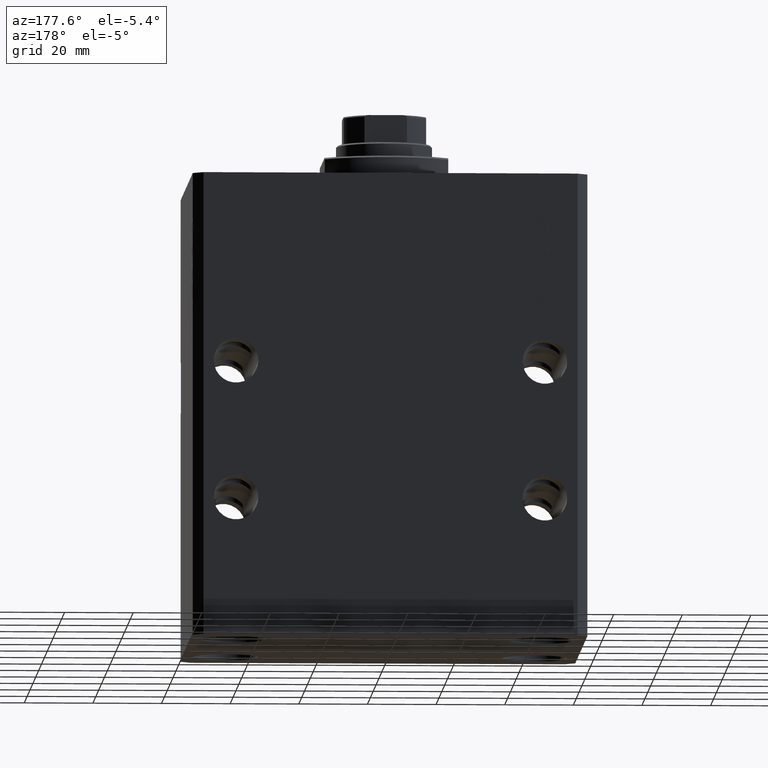
[diagram: clean part render]
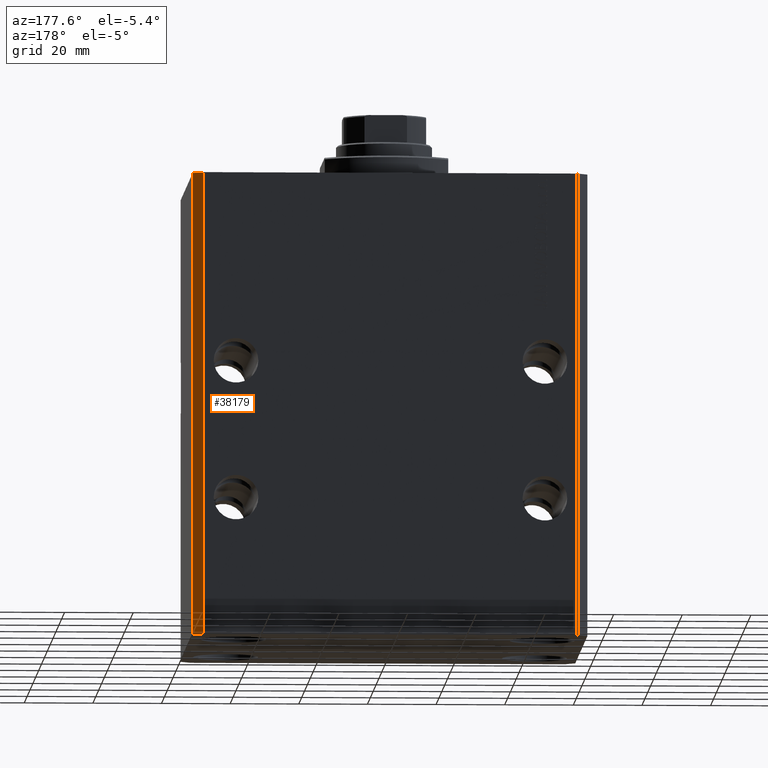
[diagram: same view with one face highlighted and labeled with its STEP entity id]
A machine part, auxiliary view. The second image highlights one B-rep face of the part: STEP entity #38179.
In plain terms, the highlighted planar face has unit normal (0.7071, 0.7071, 0).
Its self-contained STEP definition (entity closure, byte-faithful):
#1030 = CARTESIAN_POINT ( 'NONE',  ( 57.50000000000055422, 41.99999999999997868, -135.0000000000000000 ) ) ;
#1606 = DIRECTION ( 'NONE',  ( -0.7071067811865376918, 0.7071067811865574537, 0.000000000000000000 ) ) ;
#2521 = CARTESIAN_POINT ( 'NONE',  ( 54.50000000000058975, 45.00000000000002842, -135.0000000000000000 ) ) ;
#2675 = CARTESIAN_POINT ( 'NONE',  ( 57.50000000000055422, 41.99999999999997868, -135.0000000000000000 ) ) ;
#3914 = ORIENTED_EDGE ( 'NONE', *, *, #20453, .F. ) ;
#5215 = VECTOR ( 'NONE', #27878, 1000.000000000000000 ) ;
#6442 = DIRECTION ( 'NONE',  ( -0.7071067811865376918, 0.7071067811865574537, 0.000000000000000000 ) ) ;
#7818 = CARTESIAN_POINT ( 'NONE',  ( 57.50000000000055422, 41.99999999999997868, -135.0000000000000000 ) ) ;
#10049 = LINE ( 'NONE', #2521, #5215 ) ;
#11044 = VECTOR ( 'NONE', #6442, 999.9999999999998863 ) ;
#11749 = PLANE ( 'NONE',  #19410 ) ;
#12542 = ORIENTED_EDGE ( 'NONE', *, *, #17330, .F. ) ;
#12582 = VERTEX_POINT ( 'NONE', #35356 ) ;
#15491 = DIRECTION ( 'NONE',  ( -0.7071067811865378028, 0.7071067811865573427, 0.000000000000000000 ) ) ;
#15554 = LINE ( 'NONE', #7818, #26439 ) ;
#16149 = LINE ( 'NONE', #27641, #39986 ) ;
#17242 = LINE ( 'NONE', #2675, #11044 ) ;
#17330 = EDGE_CURVE ( 'NONE', #19862, #32332, #15554, .T. ) ;
#19064 = DIRECTION ( 'NONE',  ( 0.000000000000000000, 0.000000000000000000, 1.000000000000000000 ) ) ;
#19410 = AXIS2_PLACEMENT_3D ( 'NONE', #26053, #22521, #15491 ) ;
#19862 = VERTEX_POINT ( 'NONE', #1030 ) ;
#20334 = ORIENTED_EDGE ( 'NONE', *, *, #28894, .T. ) ;
#20453 = EDGE_CURVE ( 'NONE', #32332, #28497, #16149, .T. ) ;
#22306 = EDGE_LOOP ( 'NONE', ( #3914, #12542, #20334, #35202 ) ) ;
#22521 = DIRECTION ( 'NONE',  ( 0.7071067811865573427, 0.7071067811865378028, -0.000000000000000000 ) ) ;
#25489 = CARTESIAN_POINT ( 'NONE',  ( 57.50000000000055422, 41.99999999999997868, 0.000000000000000000 ) ) ;
#25821 = FACE_OUTER_BOUND ( 'NONE', #22306, .T. ) ;
#26053 = CARTESIAN_POINT ( 'NONE',  ( 57.50000000000055422, 41.99999999999997868, -135.0000000000000000 ) ) ;
#26439 = VECTOR ( 'NONE', #19064, 1000.000000000000000 ) ;
#27641 = CARTESIAN_POINT ( 'NONE',  ( 57.50000000000055422, 41.99999999999997868, 0.000000000000000000 ) ) ;
#27878 = DIRECTION ( 'NONE',  ( 0.000000000000000000, 0.000000000000000000, 1.000000000000000000 ) ) ;
#28497 = VERTEX_POINT ( 'NONE', #43238 ) ;
#28894 = EDGE_CURVE ( 'NONE', #19862, #12582, #17242, .T. ) ;
#32332 = VERTEX_POINT ( 'NONE', #25489 ) ;
#35202 = ORIENTED_EDGE ( 'NONE', *, *, #39294, .T. ) ;
#35356 = CARTESIAN_POINT ( 'NONE',  ( 54.50000000000058975, 45.00000000000002842, -135.0000000000000000 ) ) ;
#38179 = ADVANCED_FACE ( 'NONE', ( #25821 ), #11749, .T. ) ;
#39294 = EDGE_CURVE ( 'NONE', #12582, #28497, #10049, .T. ) ;
#39986 = VECTOR ( 'NONE', #1606, 999.9999999999998863 ) ;
#43238 = CARTESIAN_POINT ( 'NONE',  ( 54.50000000000058975, 45.00000000000002842, 0.000000000000000000 ) ) ;